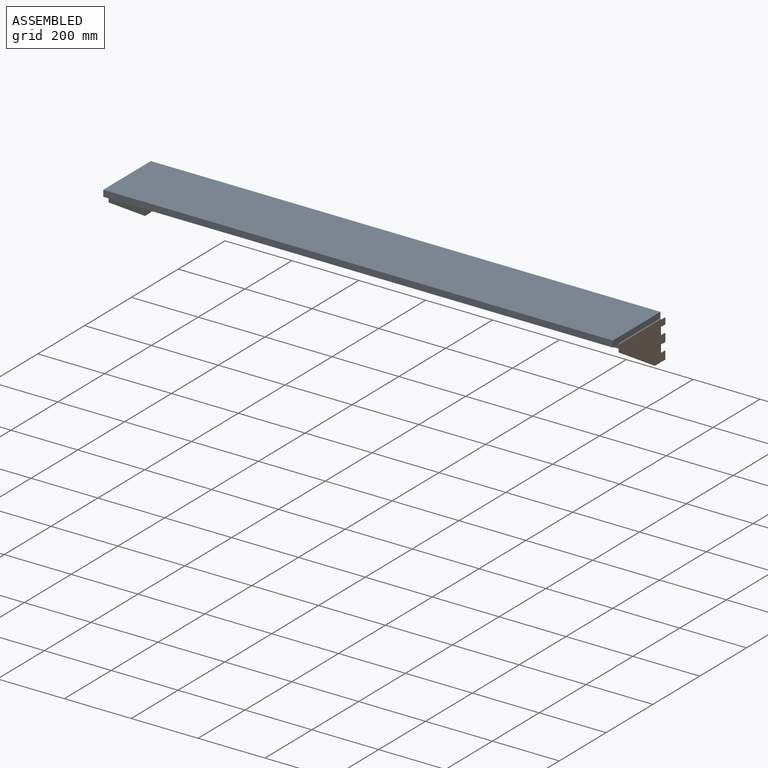
[diagram: assembled view]
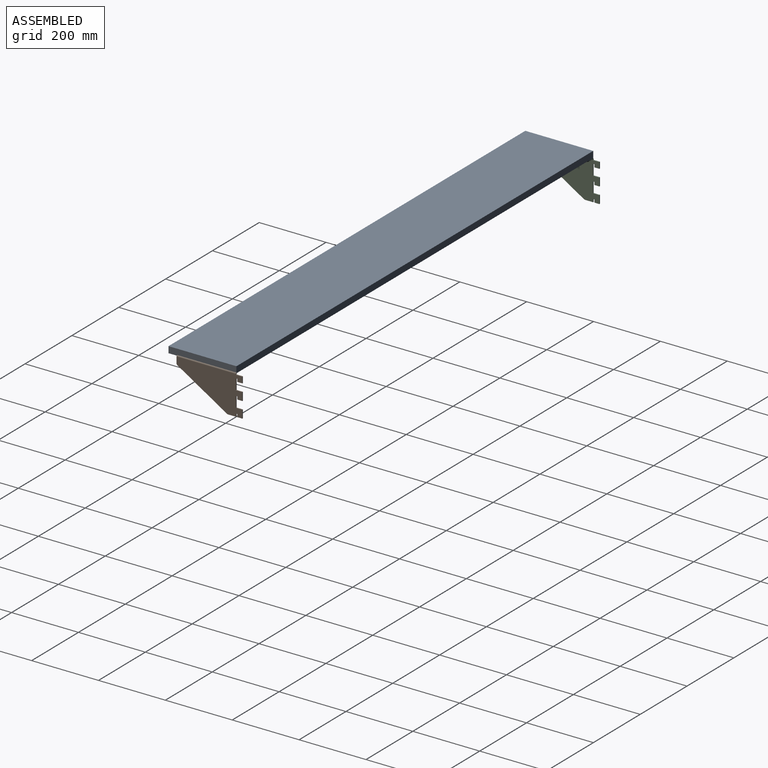
[diagram: assembled view, second angle]
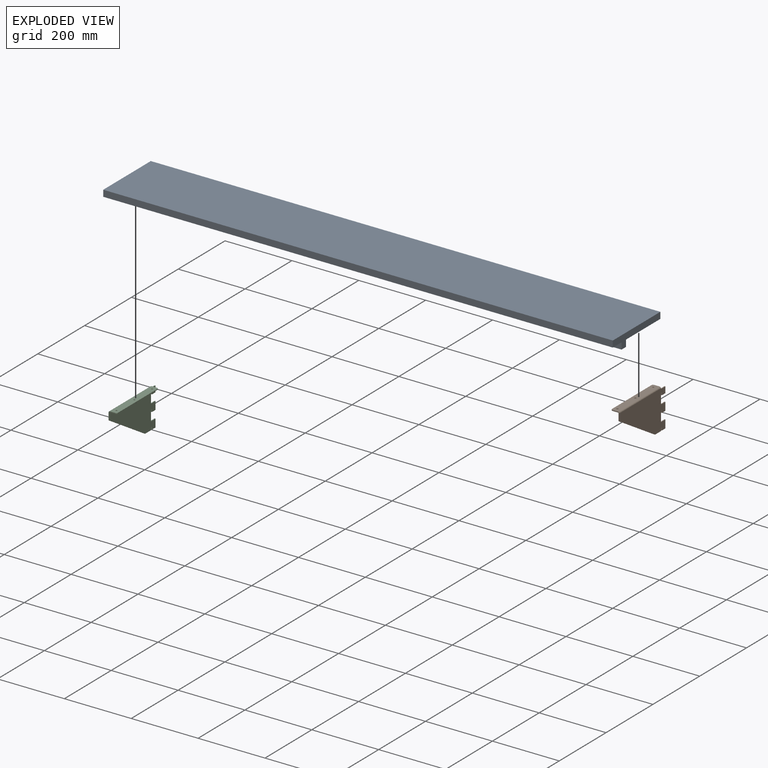
[diagram: exploded view]
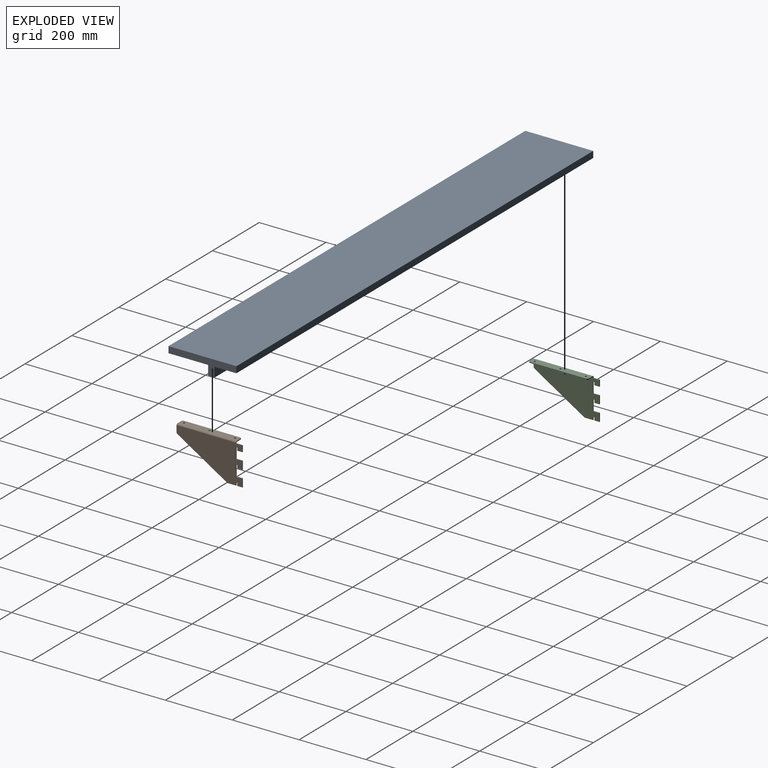
[diagram: exploded view, second angle]
ASSEMBLY  parts=3 mates=2
PART A: 23 faces, bbox 1524x203.2x69.9 mm
  f0: plane 1524x203.2mm, normal (0,0,-1), area 281973.4mm2, adj f1,f2,f3,f4,f6,f8,f10,f12
  f1: plane 1524x19.05mm, normal (0,1,0), area 29032.2mm2, adj f0,f2,f4,f5
  f2: plane 203.2x19.05mm, normal (-1,0,0), area 3871mm2, adj f0,f1,f3,f5
  f3: plane 1524x19.05mm, normal (0,-1,0), area 29032.2mm2, adj f0,f2,f4,f5
  f4: plane 203.2x19.05mm, normal (1,0,0), area 3871mm2, adj f0,f1,f3,f5
  f5: plane 1524x203.2mm, normal (0,0,1), area 309676.8mm2, adj f1,f2,f3,f4
  f6: cylinder r=2.55mm len=12.7mm, axis (0,0,-1), area 203.7mm2, adj f0,f7
  f7: plane 5.11x5.11mm, normal (0,0,-1), area 20.5mm2, adj f6
  f8: cylinder r=2.55mm len=12.7mm, axis (0,0,-1), area 203.7mm2, adj f0,f9
  f9: plane 5.11x5.11mm, normal (0,0,-1), area 20.5mm2, adj f8
  f10: cylinder r=2.55mm len=12.7mm, axis (0,0,-1), area 203.7mm2, adj f0,f11
  f11: plane 5.11x5.11mm, normal (0,0,-1), area 20.5mm2, adj f10
  f12: cylinder r=2.55mm len=12.7mm, axis (0,0,-1), area 203.7mm2, adj f0,f13
  f13: plane 5.11x5.11mm, normal (0,0,-1), area 20.5mm2, adj f12
  f14: cylinder r=2.55mm len=12.7mm, axis (0,0,-1), area 203.7mm2, adj f0,f15
  f15: plane 5.11x5.11mm, normal (0,0,-1), area 20.5mm2, adj f14
  f16: cylinder r=2.55mm len=12.7mm, axis (0,0,-1), area 203.7mm2, adj f0,f17
  f17: plane 5.11x5.11mm, normal (0,0,-1), area 20.5mm2, adj f16
  f18: plane 1447.8x50.8mm, normal (0,1,0), area 73548.2mm2, adj f0,f19,f21,f22
  f19: plane 50.8x19.05mm, normal (1,0,0), area 967.7mm2, adj f0,f18,f20,f22
  f20: plane 1447.8x50.8mm, normal (0,-1,0), area 73548.2mm2, adj f0,f19,f21,f22
  f21: plane 50.8x19.05mm, normal (-1,0,0), area 967.7mm2, adj f0,f18,f20,f22
  f22: plane 1447.8x19.05mm, normal (0,0,-1), area 27580.6mm2, adj f18,f19,f20,f21
PART B: 40 faces, bbox 196.7x25x119.4 mm
  f0: plane 3.8x2.62mm, normal (0,0,-1), area 9.9mm2, adj f1,f21,f22,f23
  f1: plane 8.5x2.62mm, normal (1,0,0), area 22.2mm2, adj f0,f2,f22,f23
  f2: plane 15.06x2.62mm, normal (0,0,-1), area 39.4mm2, adj f1,f3,f22,f23
  f3: plane 24.14x2.62mm, normal (-1,0,0), area 63.1mm2, adj f2,f4,f22,f23
  f4: plane 18.86x2.62mm, normal (0,0,1), area 49.3mm2, adj f3,f5,f22,f23
  f5: plane 32x2.62mm, normal (-1,0,0), area 83.7mm2, adj f4,f6,f22,f23
  f6: plane 3.8x2.62mm, normal (0,0,-1), area 9.9mm2, adj f5,f7,f22,f23
  f7: plane 8.5x2.62mm, normal (1,0,0), area 22.2mm2, adj f6,f8,f22,f23
  f8: plane 15.06x2.62mm, normal (0,0,-1), area 39.4mm2, adj f7,f9,f22,f23
  f9: plane 18.34x2.62mm, normal (-1,0,0), area 48mm2, adj f8,f10,f22,f23
  f10: plane 18.86x2.62mm, normal (0,0,1), area 49.3mm2, adj f9,f11,f22,f23
  f11: plane 2.62x1.59mm, normal (-1,0,0), area 4.2mm2, adj f10,f22,f23,f36
  f12: plane 18.41x2.62mm, normal (1,0,0), area 48.2mm2, adj f22,f23,f25,f37
  f13: plane 148.82x91.79mm, normal (0.52,0,-0.85), area 457.4mm2, adj f22,f23,f24,f25
  f14: plane 23.98x2.62mm, normal (0,0,-1), area 62.7mm2, adj f15,f22,f23,f24
  f15: plane 8.5x2.62mm, normal (-1,0,0), area 22.2mm2, adj f14,f16,f22,f23
  f16: plane 3.8x2.62mm, normal (0,0,-1), area 9.9mm2, adj f15,f17,f22,f23
  f17: plane 8.5x2.62mm, normal (1,0,0), area 22.2mm2, adj f16,f18,f22,f23
  f18: plane 15.06x2.62mm, normal (0,0,-1), area 39.4mm2, adj f17,f19,f22,f23
  f19: plane 24.14x2.62mm, normal (-1,0,0), area 63.1mm2, adj f18,f20,f22,f23
  f20: plane 18.86x2.62mm, normal (0,0,1), area 49.3mm2, adj f19,f21,f22,f23
  f21: plane 32x2.62mm, normal (-1,0,0), area 83.7mm2, adj f0,f20,f22,f23
  f22: plane 196.66x115.19mm, normal (0,1,0), area 14476.6mm2, adj f0,f1,f2,f3,f4,f5,f6,f7
  f23: plane 196.66x115.19mm, normal (0,-1,0), area 14476.6mm2, adj f0,f1,f2,f3,f4,f5,f6,f7
  f24: cylinder r=5mm len=2.62mm, axis (0,-1,0), area 7.2mm2, adj f13,f14,f22,f23
  f25: cylinder r=5mm len=4.26mm, axis (0,1,0), area 13.3mm2, adj f12,f13,f22,f23
  f26: plane 167.8x2.62mm, normal (0,-1,0), area 439mm2, adj f32,f33,f34,f35
  f27: plane 15.8x2.62mm, normal (1,0,0), area 41.3mm2, adj f32,f33,f34,f37
  f28: cylinder r=2.55mm len=5.11mm, axis (0,0,1), area 42mm2, adj f32,f33
  f29: cylinder r=2.55mm len=5.11mm, axis (0,0,1), area 42mm2, adj f32,f33
  f30: cylinder r=2.55mm len=5.11mm, axis (0,0,1), area 42mm2, adj f32,f33
  f31: plane 15.8x2.62mm, normal (-1,0,0), area 41.3mm2, adj f32,f33,f35,f36
  f32: plane 177.8x20.8mm, normal (0,0,1), area 3625.4mm2, adj f26,f27,f28,f29,f30,f31,f34,f35
  f33: plane 177.8x20.8mm, normal (0,0,-1), area 3625.4mm2, adj f26,f27,f28,f29,f30,f31,f34,f35
  f34: cylinder r=5mm len=5mm, axis (0,0,1), area 20.5mm2, adj f26,f27,f32,f33
  f35: cylinder r=5mm len=5mm, axis (0,0,-1), area 20.5mm2, adj f26,f31,f32,f33
  f36: plane 4.2x4.2mm, normal (-1,0,0), area 11.9mm2, adj f11,f31,f38,f39
  f37: plane 4.2x4.2mm, normal (1,0,0), area 11.9mm2, adj f12,f27,f38,f39
  f38: cylinder r=4.2mm len=177.8mm, axis (-1,0,0), area 1174mm2, adj f22,f32,f36,f37
  f39: cylinder r=1.59mm len=177.8mm, axis (-1,0,0), area 443.4mm2, adj f23,f33,f36,f37
PART C: 40 faces, bbox 196.7x25x119.4 mm
  f0: plane 3.8x2.62mm, normal (0,0,-1), area 9.9mm2, adj f1,f21,f22,f23
  f1: plane 8.5x2.62mm, normal (1,0,0), area 22.2mm2, adj f0,f2,f22,f23
  f2: plane 15.06x2.62mm, normal (0,0,-1), area 39.4mm2, adj f1,f3,f22,f23
  f3: plane 24.14x2.62mm, normal (-1,0,0), area 63.1mm2, adj f2,f4,f22,f23
  f4: plane 18.86x2.62mm, normal (0,0,1), area 49.3mm2, adj f3,f5,f22,f23
  f5: plane 32x2.62mm, normal (-1,0,0), area 83.7mm2, adj f4,f6,f22,f23
  f6: plane 3.8x2.62mm, normal (0,0,-1), area 9.9mm2, adj f5,f7,f22,f23
  f7: plane 8.5x2.62mm, normal (1,0,0), area 22.2mm2, adj f6,f8,f22,f23
  f8: plane 15.06x2.62mm, normal (0,0,-1), area 39.4mm2, adj f7,f9,f22,f23
  f9: plane 18.34x2.62mm, normal (-1,0,0), area 48mm2, adj f8,f10,f22,f23
  f10: plane 18.86x2.62mm, normal (0,0,1), area 49.3mm2, adj f9,f11,f22,f23
  f11: plane 2.62x1.59mm, normal (-1,0,0), area 4.2mm2, adj f10,f22,f23,f37
  f12: plane 18.41x2.62mm, normal (1,0,0), area 48.2mm2, adj f22,f23,f25,f36
  f13: plane 148.82x91.79mm, normal (0.52,0,-0.85), area 457.4mm2, adj f22,f23,f24,f25
  f14: plane 23.98x2.62mm, normal (0,0,-1), area 62.7mm2, adj f15,f22,f23,f24
  f15: plane 8.5x2.62mm, normal (-1,0,0), area 22.2mm2, adj f14,f16,f22,f23
  f16: plane 3.8x2.62mm, normal (0,0,-1), area 9.9mm2, adj f15,f17,f22,f23
  f17: plane 8.5x2.62mm, normal (1,0,0), area 22.2mm2, adj f16,f18,f22,f23
  f18: plane 15.06x2.62mm, normal (0,0,-1), area 39.4mm2, adj f17,f19,f22,f23
  f19: plane 24.14x2.62mm, normal (-1,0,0), area 63.1mm2, adj f18,f20,f22,f23
  f20: plane 18.86x2.62mm, normal (0,0,1), area 49.3mm2, adj f19,f21,f22,f23
  f21: plane 32x2.62mm, normal (-1,0,0), area 83.7mm2, adj f0,f20,f22,f23
  f22: plane 196.66x115.19mm, normal (0,1,0), area 14476.6mm2, adj f0,f1,f2,f3,f4,f5,f6,f7
  f23: plane 196.66x115.19mm, normal (0,-1,0), area 14476.6mm2, adj f0,f1,f2,f3,f4,f5,f6,f7
  f24: cylinder r=5mm len=2.62mm, axis (0,-1,0), area 7.2mm2, adj f13,f14,f22,f23
  f25: cylinder r=5mm len=4.26mm, axis (0,1,0), area 13.3mm2, adj f12,f13,f22,f23
  f26: plane 167.8x2.62mm, normal (0,1,0), area 439mm2, adj f32,f33,f34,f35
  f27: plane 15.8x2.62mm, normal (1,0,0), area 41.3mm2, adj f32,f33,f34,f36
  f28: cylinder r=2.55mm len=5.11mm, axis (0,0,-1), area 42mm2, adj f32,f33
  f29: cylinder r=2.55mm len=5.11mm, axis (0,0,-1), area 42mm2, adj f32,f33
  f30: cylinder r=2.55mm len=5.11mm, axis (0,0,-1), area 42mm2, adj f32,f33
  f31: plane 15.8x2.62mm, normal (-1,0,0), area 41.3mm2, adj f32,f33,f35,f37
  f32: plane 177.8x20.8mm, normal (0,0,-1), area 3625.4mm2, adj f26,f27,f28,f29,f30,f31,f34,f35
  f33: plane 177.8x20.8mm, normal (0,0,1), area 3625.4mm2, adj f26,f27,f28,f29,f30,f31,f34,f35
  f34: cylinder r=5mm len=5mm, axis (0,0,-1), area 20.5mm2, adj f26,f27,f32,f33
  f35: cylinder r=5mm len=5mm, axis (0,0,1), area 20.5mm2, adj f26,f31,f32,f33
  f36: plane 4.2x4.2mm, normal (1,0,0), area 11.9mm2, adj f12,f27,f38,f39
  f37: plane 4.2x4.2mm, normal (-1,0,0), area 11.9mm2, adj f11,f31,f38,f39
  f38: cylinder r=4.2mm len=177.8mm, axis (1,0,0), area 1174mm2, adj f23,f33,f36,f37
  f39: cylinder r=1.59mm len=177.8mm, axis (1,0,0), area 443.4mm2, adj f22,f32,f36,f37
PLACE A t=(0,-25.4,0)mm
PLACE B rot(axis=(0,0,-1),90deg) t=(1435.16,159.59,-41.64)mm
PLACE C rot(axis=(0,0,-1),90deg) t=(-90.03,159.59,-44.26)mm
MATE fastened C.f29 <-> A.f6  axis (0,0,1) through (-78.04,-9.31,0)mm
MATE fastened B.f29 <-> A.f12  axis (0,0,-1) through (1420.56,-9.31,0)mm
